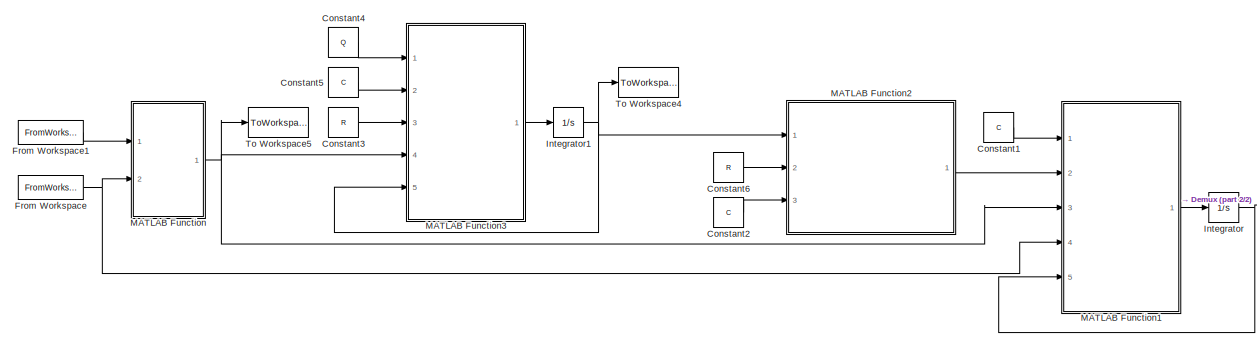
[diagram: root canvas - part 1/2, most of the canvas]
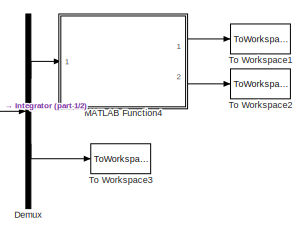
[diagram: root canvas - part 2/2, middle right region]
MODEL slx_82b64abd6104
KIND model
CONFIG AbsTol = auto
CONFIG EnableMultiTasking = off
CONFIG FixedStep = auto
CONFIG MaxStep = 0.0005
CONFIG MinStep = auto
CONFIG RelTol = 1e-3
CONFIG SampleTimeConstraint = Unconstrained
CONFIG Solver = VariableStepAuto
CONFIG SolverName = VariableStepAuto
CONFIG StartTime = 0.0
CONFIG StopTime = 30
BLOCK [Constant] Constant1
  Value = C
BLOCK [Constant] Constant2
  Value = C
BLOCK [Constant] Constant3
  Value = R
BLOCK [Constant] Constant4
  Value = Q
BLOCK [Constant] Constant5
  Value = C
BLOCK [Constant] Constant6
  Value = R
BLOCK [Demux] Demux
  Outputs = [3,3]
  Ports = [1, 2]
BLOCK [FromWorkspace] From Workspace
  SampleTime = inputTs
  VariableName = y
BLOCK [FromWorkspace] From Workspace1
  SampleTime = inputTs
  VariableName = wm
BLOCK [Integrator] Integrator
  InitialCondition = x0
  Ports = [1, 1]
BLOCK [Integrator] Integrator1
  InitialCondition = P0
  Ports = [1, 1]
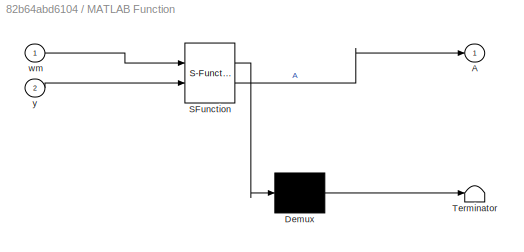
BLOCK [SubSystem] MATLAB Function
  ErrorFcn = Stateflow.Translate.translate
  PermitHierarchicalResolution = ExplicitOnly
  Ports = [2, 1]
  RequestExecContextInheritance = off
  SFBlockType = MATLAB Function
  TreatAsAtomicUnit = on
BLOCK [Demux] MATLAB Function/ Demux 
  Outputs = 1
  Ports = [1, 1]
BLOCK [S-Function] MATLAB Function/ SFunction 
  EnableBusSupport = on
  FunctionName = sf_sfun
  PortCounts = [2 2]
  Ports = [2, 2]
  SFcnIsStateOwnerBlock = off
  SFunctionDeploymentMode = off
  Tag = Stateflow S-Function 2
BLOCK [Terminator] MATLAB Function/ Terminator 
BLOCK [Outport] MATLAB Function/A
  VectorParamsAs1DForOutWhenUnconnected = off
BLOCK [Inport] MATLAB Function/wm
BLOCK [Inport] MATLAB Function/y
  Port = 2
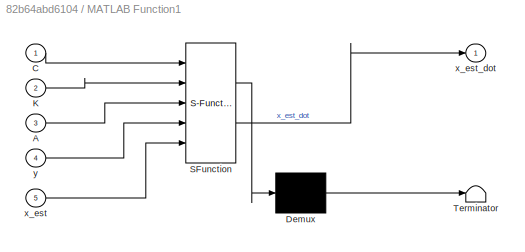
BLOCK [SubSystem] MATLAB Function1
  ErrorFcn = Stateflow.Translate.translate
  PermitHierarchicalResolution = ExplicitOnly
  Ports = [5, 1]
  RequestExecContextInheritance = off
  SFBlockType = MATLAB Function
  TreatAsAtomicUnit = on
BLOCK [Demux] MATLAB Function1/ Demux 
  Outputs = 1
  Ports = [1, 1]
BLOCK [S-Function] MATLAB Function1/ SFunction 
  EnableBusSupport = on
  FunctionName = sf_sfun
  PortCounts = [5 2]
  Ports = [5, 2]
  SFcnIsStateOwnerBlock = off
  SFunctionDeploymentMode = off
  Tag = Stateflow S-Function 1
BLOCK [Terminator] MATLAB Function1/ Terminator 
BLOCK [Inport] MATLAB Function1/A
  Port = 3
BLOCK [Inport] MATLAB Function1/C
BLOCK [Inport] MATLAB Function1/K
  Port = 2
BLOCK [Inport] MATLAB Function1/x_est
  Port = 5
BLOCK [Outport] MATLAB Function1/x_est_dot
  VectorParamsAs1DForOutWhenUnconnected = off
BLOCK [Inport] MATLAB Function1/y
  Port = 4
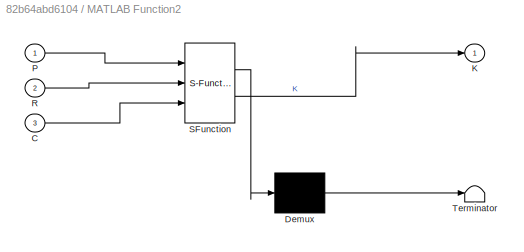
BLOCK [SubSystem] MATLAB Function2
  ErrorFcn = Stateflow.Translate.translate
  PermitHierarchicalResolution = ExplicitOnly
  Ports = [3, 1]
  RequestExecContextInheritance = off
  SFBlockType = MATLAB Function
  TreatAsAtomicUnit = on
BLOCK [Demux] MATLAB Function2/ Demux 
  Outputs = 1
  Ports = [1, 1]
BLOCK [S-Function] MATLAB Function2/ SFunction 
  EnableBusSupport = on
  FunctionName = sf_sfun
  PortCounts = [3 2]
  Ports = [3, 2]
  SFcnIsStateOwnerBlock = off
  SFunctionDeploymentMode = off
  Tag = Stateflow S-Function 3
BLOCK [Terminator] MATLAB Function2/ Terminator 
BLOCK [Inport] MATLAB Function2/C
  Port = 3
BLOCK [Outport] MATLAB Function2/K
  VectorParamsAs1DForOutWhenUnconnected = off
BLOCK [Inport] MATLAB Function2/P
BLOCK [Inport] MATLAB Function2/R
  Port = 2
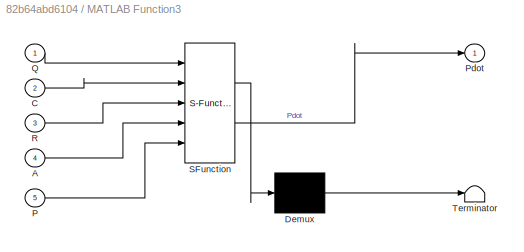
BLOCK [SubSystem] MATLAB Function3
  ErrorFcn = Stateflow.Translate.translate
  PermitHierarchicalResolution = ExplicitOnly
  Ports = [5, 1]
  RequestExecContextInheritance = off
  SFBlockType = MATLAB Function
  TreatAsAtomicUnit = on
BLOCK [Demux] MATLAB Function3/ Demux 
  Outputs = 1
  Ports = [1, 1]
BLOCK [S-Function] MATLAB Function3/ SFunction 
  EnableBusSupport = on
  FunctionName = sf_sfun
  PortCounts = [5 2]
  Ports = [5, 2]
  SFcnIsStateOwnerBlock = off
  SFunctionDeploymentMode = off
  Tag = Stateflow S-Function 4
BLOCK [Terminator] MATLAB Function3/ Terminator 
BLOCK [Inport] MATLAB Function3/A
  Port = 4
BLOCK [Inport] MATLAB Function3/C
  Port = 2
BLOCK [Inport] MATLAB Function3/P
  Port = 5
BLOCK [Outport] MATLAB Function3/Pdot
  VectorParamsAs1DForOutWhenUnconnected = off
BLOCK [Inport] MATLAB Function3/Q
BLOCK [Inport] MATLAB Function3/R
  Port = 3
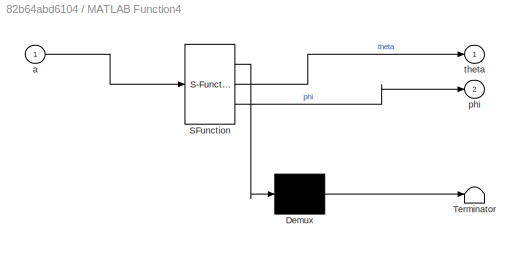
BLOCK [SubSystem] MATLAB Function4
  ErrorFcn = Stateflow.Translate.translate
  PermitHierarchicalResolution = ExplicitOnly
  Ports = [1, 2]
  RequestExecContextInheritance = off
  SFBlockType = MATLAB Function
  TreatAsAtomicUnit = on
BLOCK [Demux] MATLAB Function4/ Demux 
  Outputs = 1
  Ports = [1, 1]
BLOCK [S-Function] MATLAB Function4/ SFunction 
  EnableBusSupport = on
  FunctionName = sf_sfun
  PortCounts = [1 3]
  Ports = [1, 3]
  SFcnIsStateOwnerBlock = off
  SFunctionDeploymentMode = off
  Tag = Stateflow S-Function 5
BLOCK [Terminator] MATLAB Function4/ Terminator 
BLOCK [Inport] MATLAB Function4/a
BLOCK [Outport] MATLAB Function4/phi
  Port = 2
  VectorParamsAs1DForOutWhenUnconnected = off
BLOCK [Outport] MATLAB Function4/theta
  VectorParamsAs1DForOutWhenUnconnected = off
BLOCK [ToWorkspace] To Workspace1
  FixptAsFi = on
  MaxDataPoints = inf
  Ports = [1]
  SampleTime = -1
  SaveFormat = Structure With Time
  VariableName = theta_est
BLOCK [ToWorkspace] To Workspace2
  FixptAsFi = on
  MaxDataPoints = inf
  Ports = [1]
  SampleTime = -1
  SaveFormat = Structure With Time
  VariableName = phi_est
BLOCK [ToWorkspace] To Workspace3
  FixptAsFi = on
  MaxDataPoints = inf
  Ports = [1]
  SampleTime = -1
  SaveFormat = Structure With Time
  VariableName = bias_est
BLOCK [ToWorkspace] To Workspace4
  FixptAsFi = on
  MaxDataPoints = inf
  Ports = [1]
  SampleTime = -1
  SaveFormat = Structure With Time
  VariableName = P
BLOCK [ToWorkspace] To Workspace5
  FixptAsFi = on
  MaxDataPoints = inf
  Ports = [1]
  SampleTime = -1
  SaveFormat = Structure With Time
  VariableName = A
LINE Constant1:1 -> MATLAB Function1:1
LINE Constant2:1 -> MATLAB Function2:3
LINE Constant3:1 -> MATLAB Function3:3
LINE Constant4:1 -> MATLAB Function3:1
LINE Constant5:1 -> MATLAB Function3:2
LINE Constant6:1 -> MATLAB Function2:2
LINE Demux:1 -> MATLAB Function4:1
LINE Demux:2 -> To Workspace3:1
LINE From Workspace1:1 -> MATLAB Function:1
NET From Workspace:1 -> MATLAB Function1:4, MATLAB Function:2
NET Integrator1:1 -> MATLAB Function2:1, MATLAB Function3:5, To Workspace4:1
NET Integrator:1 -> Demux:1, MATLAB Function1:5
LINE MATLAB Function1:1 -> Integrator:1
LINE MATLAB Function2:1 -> MATLAB Function1:2
LINE MATLAB Function3:1 -> Integrator1:1
LINE MATLAB Function4:1 -> To Workspace1:1
LINE MATLAB Function4:2 -> To Workspace2:1
NET MATLAB Function:1 -> MATLAB Function1:3, MATLAB Function3:4, To Workspace5:1
note: NET lines group one-source signal fan-out (src -> all destinations, sorted); 1:1 wires keep LINE
CHART MATLAB Function1 states=1 transitions=1
  STATE_LABEL 'eML_blk_kernel()'
  STATE_LABEL 'SCRIPT:\nfunction x_est_dot = dynamics(C,K,A,y,x_est)\n    x_est_dot = A*x_est+K*(y-C*x_est);\nend'
CHART MATLAB Function states=1 transitions=1
  STATE_LABEL 'eML_blk_kernel()'
  STATE_LABEL 'SCRIPT:\nfunction A = createA(wm,y)\n    Swm = skew(wm);\n    Sy = skew(y);\n    \n    A = [-Swm,-Sy;\n         zeros(3),zeros(3)];\nend\n\nfunction S = skew(v)\n    S = [0, -v(3), v(2);\n        v(3), 0, -v(1);\n        -v(2), v(1), 0];\nend'
CHART MATLAB Function2 states=1 transitions=1
  STATE_LABEL 'eML_blk_kernel()'
  STATE_LABEL "SCRIPT:\nfunction K = createK(P,R,C)\n    K = P*C'/R;\nend\n"
CHART MATLAB Function3 states=1 transitions=1
  STATE_LABEL 'eML_blk_kernel()'
  STATE_LABEL "SCRIPT:\nfunction Pdot = getPdot(Q,C,R,A,P)\n    Pdot = A*P+P*A'+Q-P*C'/R*C*P;\nend"
CHART MATLAB Function4 states=1 transitions=1
  STATE_LABEL 'eML_blk_kernel()'
  STATE_LABEL 'SCRIPT:\nfunction [theta,phi] = calc_theta_phi(a)\n    phi = 180/pi*atan(a(2)/a(3));\n    theta = 180/pi*atan(a(1)/sqrt(a(2)^2 + a(3)^2));\nend\n'
CHART  states=0 transitions=0
CHART  states=0 transitions=0
CHART  states=0 transitions=0
CHART  states=0 transitions=0
CHART  states=0 transitions=0
